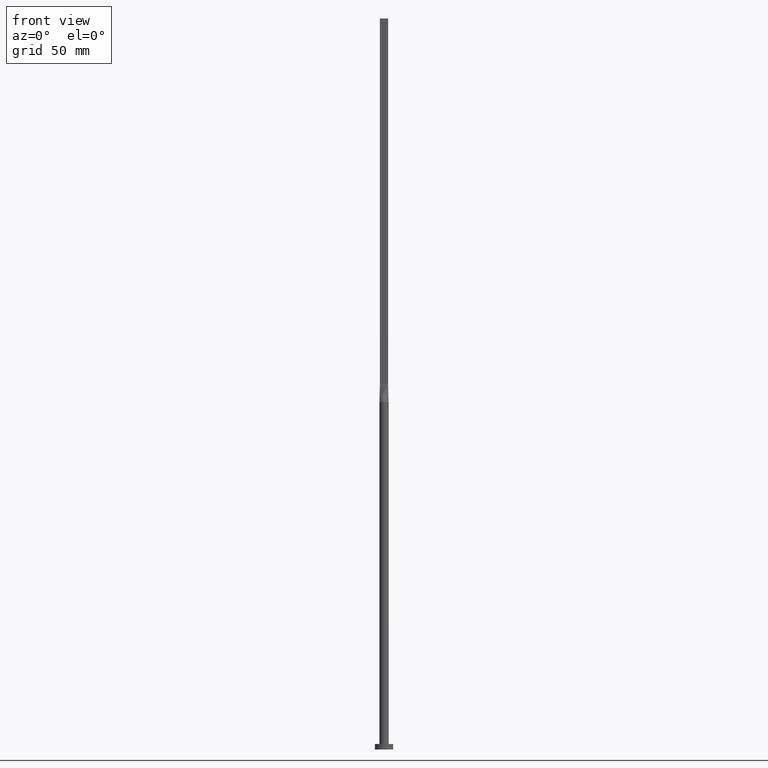
[diagram: clean part render]
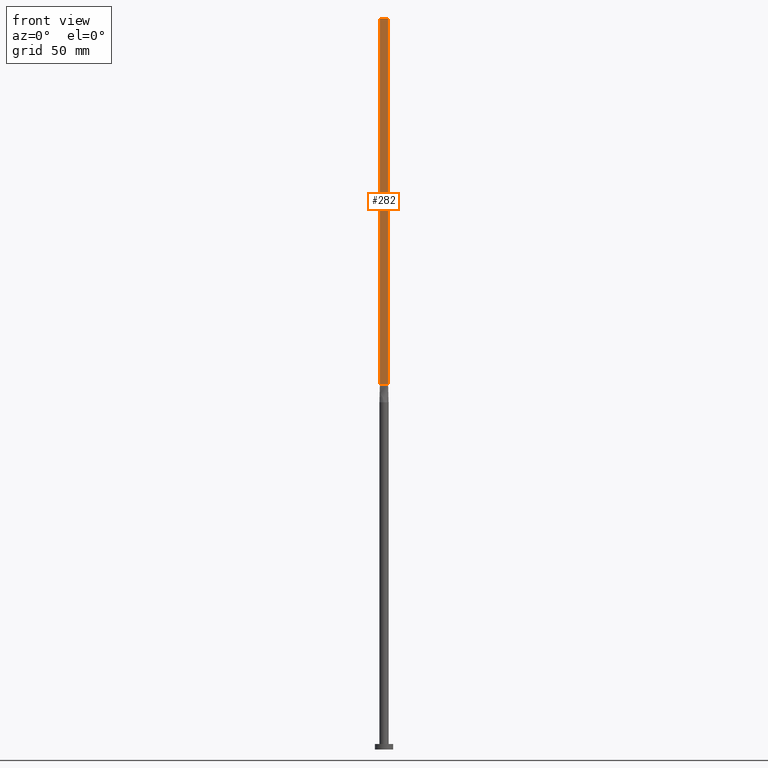
[diagram: same view with one face highlighted and labeled with its STEP entity id]
A machine part, front view. The second image highlights one B-rep face of the part: STEP entity #282.
In plain terms, the highlighted planar face has unit normal (0, 1, -0).
Its self-contained STEP definition (entity closure, byte-faithful):
#11 = DIRECTION ( 'NONE',  ( 1.000000000000000000, -7.228014483236697048E-17, 0.000000000000000000 ) ) ;
#29 = VERTEX_POINT ( 'NONE', #72 ) ;
#51 = VERTEX_POINT ( 'NONE', #328 ) ;
#60 = CARTESIAN_POINT ( 'NONE',  ( 2.250000000000000000, -0.5999999999999997558, 200.0000000000000000 ) ) ;
#61 = LINE ( 'NONE', #470, #450 ) ;
#72 = CARTESIAN_POINT ( 'NONE',  ( -2.250000000000000000, -0.5999999999999994227, 200.0000000000000000 ) ) ;
#80 = EDGE_LOOP ( 'NONE', ( #534, #373, #567, #531 ) ) ;
#192 = EDGE_CURVE ( 'NONE', #540, #29, #353, .T. ) ;
#196 = VECTOR ( 'NONE', #11, 1000.000000000000000 ) ;
#208 = CARTESIAN_POINT ( 'NONE',  ( -2.250000000000000000, -0.5999999999999994227, 400.0000000000000000 ) ) ;
#215 = DIRECTION ( 'NONE',  ( -0.000000000000000000, -0.000000000000000000, -1.000000000000000000 ) ) ;
#232 = LINE ( 'NONE', #421, #196 ) ;
#240 = DIRECTION ( 'NONE',  ( -1.000000000000000000, 7.228014483236697048E-17, 0.000000000000000000 ) ) ;
#277 = VECTOR ( 'NONE', #215, 1000.000000000000000 ) ;
#280 = DIRECTION ( 'NONE',  ( 7.228014483236697048E-17, 1.000000000000000000, -0.000000000000000000 ) ) ;
#281 = PLANE ( 'NONE',  #300 ) ;
#282 = ADVANCED_FACE ( 'NONE', ( #324 ), #281, .F. ) ;
#295 = DIRECTION ( 'NONE',  ( -0.000000000000000000, -0.000000000000000000, -1.000000000000000000 ) ) ;
#300 = AXIS2_PLACEMENT_3D ( 'NONE', #413, #280, #240 ) ;
#324 = FACE_OUTER_BOUND ( 'NONE', #80, .T. ) ;
#328 = CARTESIAN_POINT ( 'NONE',  ( 2.250000000000000000, -0.5999999999999997558, 400.0000000000000000 ) ) ;
#353 = LINE ( 'NONE', #208, #277 ) ;
#354 = VERTEX_POINT ( 'NONE', #60 ) ;
#364 = EDGE_CURVE ( 'NONE', #540, #51, #232, .T. ) ;
#373 = ORIENTED_EDGE ( 'NONE', *, *, #375, .F. ) ;
#375 = EDGE_CURVE ( 'NONE', #51, #354, #61, .T. ) ;
#384 = LINE ( 'NONE', #523, #561 ) ;
#391 = EDGE_CURVE ( 'NONE', #29, #354, #384, .T. ) ;
#413 = CARTESIAN_POINT ( 'NONE',  ( -2.250000000000000000, -0.5999999999999994227, 400.0000000000000000 ) ) ;
#421 = CARTESIAN_POINT ( 'NONE',  ( -2.250000000000000000, -0.5999999999999994227, 400.0000000000000000 ) ) ;
#435 = DIRECTION ( 'NONE',  ( 1.000000000000000000, -7.228014483236697048E-17, 0.000000000000000000 ) ) ;
#441 = CARTESIAN_POINT ( 'NONE',  ( -2.250000000000000000, -0.5999999999999994227, 400.0000000000000000 ) ) ;
#450 = VECTOR ( 'NONE', #295, 1000.000000000000000 ) ;
#470 = CARTESIAN_POINT ( 'NONE',  ( 2.250000000000000000, -0.5999999999999997558, 400.0000000000000000 ) ) ;
#523 = CARTESIAN_POINT ( 'NONE',  ( -2.250000000000000000, -0.5999999999999994227, 200.0000000000000000 ) ) ;
#531 = ORIENTED_EDGE ( 'NONE', *, *, #192, .T. ) ;
#534 = ORIENTED_EDGE ( 'NONE', *, *, #391, .T. ) ;
#540 = VERTEX_POINT ( 'NONE', #441 ) ;
#561 = VECTOR ( 'NONE', #435, 1000.000000000000000 ) ;
#567 = ORIENTED_EDGE ( 'NONE', *, *, #364, .F. ) ;